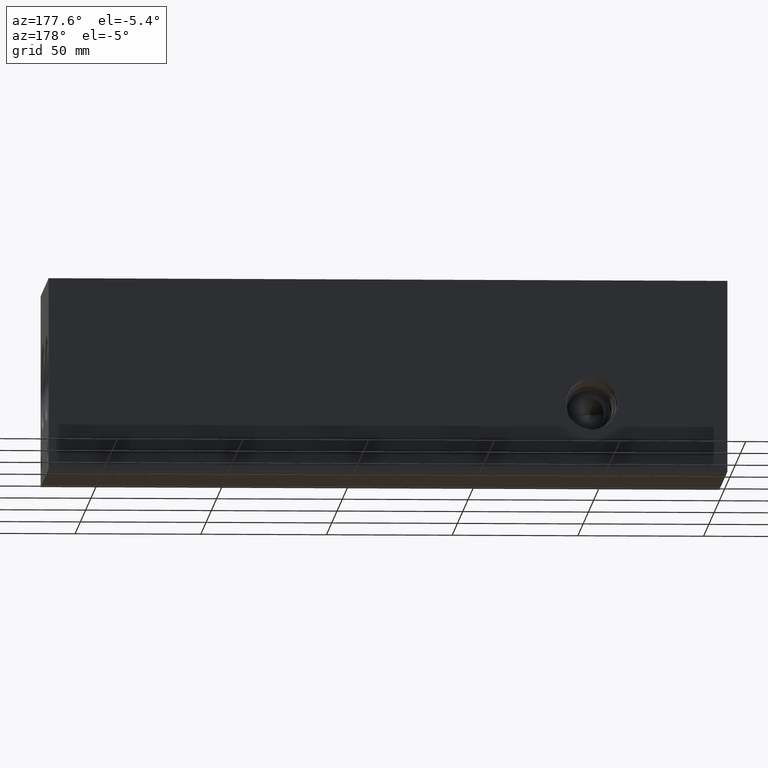
[diagram: clean part render]
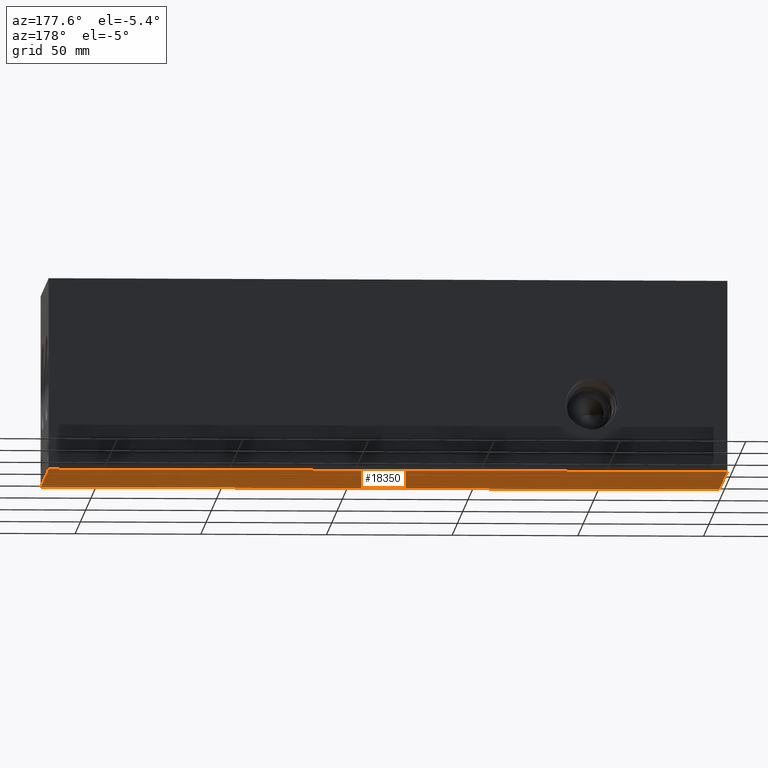
[diagram: same view with one face highlighted and labeled with its STEP entity id]
A machine part, auxiliary view. The second image highlights one B-rep face of the part: STEP entity #18350.
In plain terms, the highlighted planar face has unit normal (0, 0, 1).
Its self-contained STEP definition (entity closure, byte-faithful):
#2668=FACE_OUTER_BOUND('',#3807,.T.);
#3807=EDGE_LOOP('',(#16321,#16322,#16323,#16324));
#3864=LINE('',#24093,#5394);
#3924=LINE('',#24368,#5454);
#4238=LINE('',#26977,#5768);
#5336=LINE('',#32032,#6866);
#5394=VECTOR('',#19775,10.);
#5454=VECTOR('',#19889,10.);
#5768=VECTOR('',#20373,10.);
#6866=VECTOR('',#23829,10.);
#6916=VERTEX_POINT('',#24091);
#6917=VERTEX_POINT('',#24092);
#6976=VERTEX_POINT('',#24366);
#6977=VERTEX_POINT('',#24367);
#8726=EDGE_CURVE('',#6916,#6917,#3864,.T.);
#8810=EDGE_CURVE('',#6976,#6977,#3924,.T.);
#9362=EDGE_CURVE('',#6977,#6916,#4238,.T.);
#11209=EDGE_CURVE('',#6917,#6976,#5336,.T.);
#16321=ORIENTED_EDGE('',*,*,#9362,.F.);
#16322=ORIENTED_EDGE('',*,*,#8810,.F.);
#16323=ORIENTED_EDGE('',*,*,#11209,.F.);
#16324=ORIENTED_EDGE('',*,*,#8726,.F.);
#16791=PLANE('',#19678);
#18350=ADVANCED_FACE('',(#2668),#16791,.F.);
#19678=AXIS2_PLACEMENT_3D('',#32037,#23837,#23838);
#19775=DIRECTION('',(0.,1.,0.));
#19889=DIRECTION('',(0.,-1.,0.));
#20373=DIRECTION('',(1.,0.,0.));
#23829=DIRECTION('',(-1.,0.,0.));
#23837=DIRECTION('center_axis',(0.,0.,1.));
#23838=DIRECTION('ref_axis',(1.,0.,0.));
#24091=CARTESIAN_POINT('',(270.002,0.,0.));
#24092=CARTESIAN_POINT('',(270.002,76.2,0.));
#24093=CARTESIAN_POINT('',(270.002,0.,0.));
#24366=CARTESIAN_POINT('',(0.,76.2,0.));
#24367=CARTESIAN_POINT('',(0.,0.,0.));
#24368=CARTESIAN_POINT('',(0.,76.2,0.));
#26977=CARTESIAN_POINT('',(0.,0.,0.));
#32032=CARTESIAN_POINT('',(270.002,76.2,0.));
#32037=CARTESIAN_POINT('Origin',(135.001,38.1,0.));